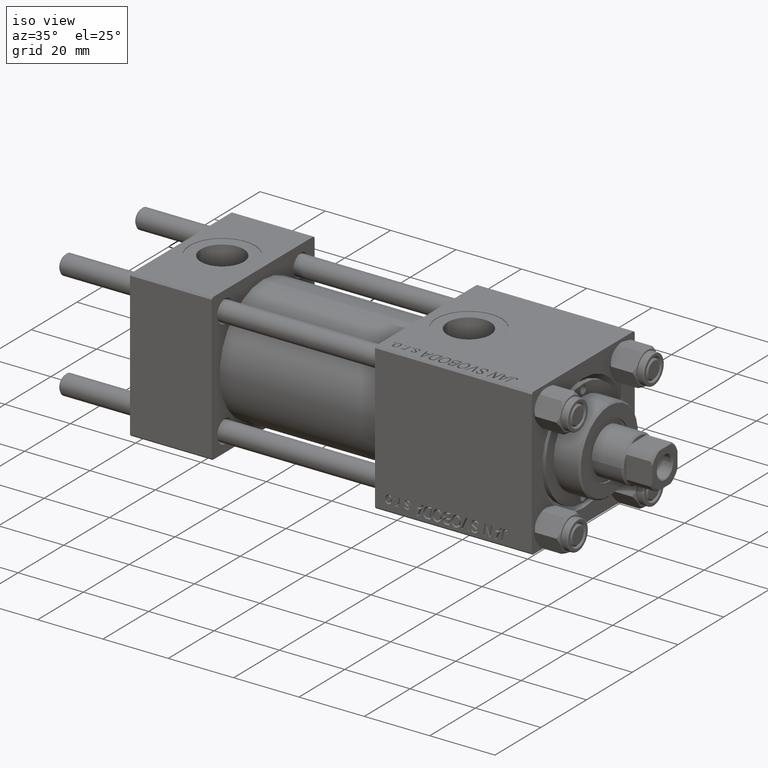
[diagram: clean part render]
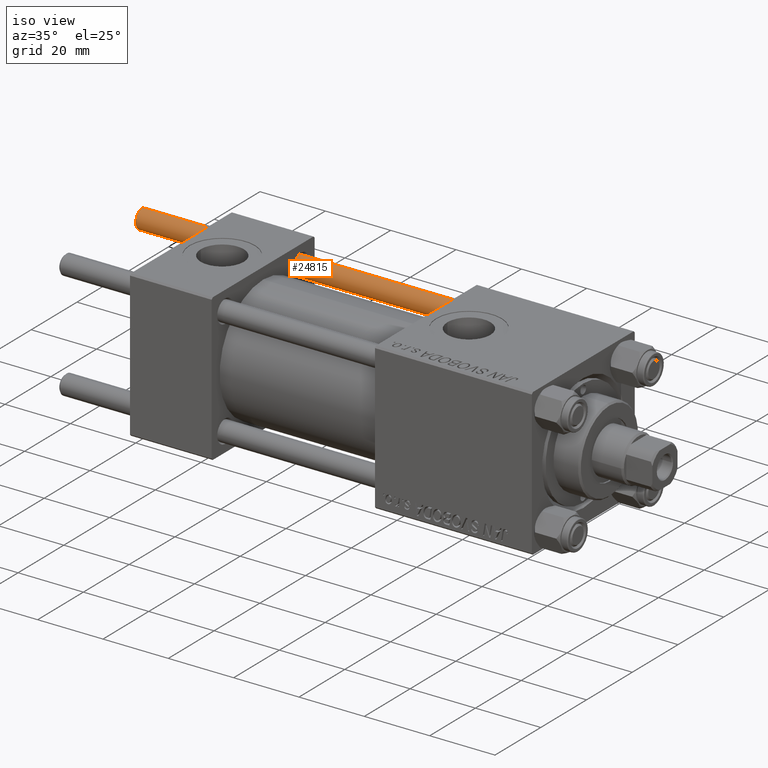
[diagram: same view with one face highlighted and labeled with its STEP entity id]
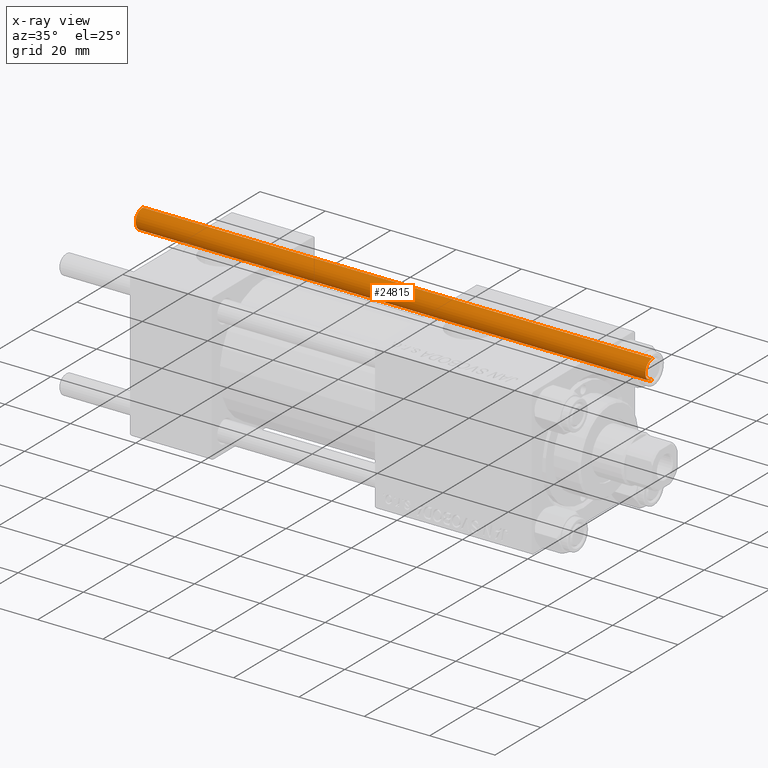
[diagram: x-ray of the same camera — body ghosted, the highlighted face saturated]
A machine part, iso view. The second image highlights one B-rep face of the part: STEP entity #24815.
The next image is the same camera in x-ray: the body ghosted, the highlighted face saturated — about 0% of this face is hidden behind the body in this view.
In plain terms, the highlighted cylindrical surface (edge-blend (fillet) strip) has radius 3 mm, axis along (-1, -0, -0).
Its self-contained STEP definition (entity closure, byte-faithful):
#1896 = VERTEX_POINT ( 'NONE', #11732 ) ;
#3324 = EDGE_LOOP ( 'NONE', ( #34617, #22170, #18731, #33400 ) ) ;
#3808 = VERTEX_POINT ( 'NONE', #28112 ) ;
#4708 = EDGE_CURVE ( 'NONE', #1896, #3808, #44810, .T. ) ;
#7423 = CIRCLE ( 'NONE', #13902, 3.000000000000000444 ) ;
#7602 = VECTOR ( 'NONE', #48606, 1000.000000000000000 ) ;
#9958 = DIRECTION ( 'NONE',  ( -0.000000000000000000, -0.000000000000000000, -1.000000000000000000 ) ) ;
#11732 = CARTESIAN_POINT ( 'NONE',  ( 3.000000000000000444, 3.673940397442060361E-16, 156.5000000000000284 ) ) ;
#11963 = CIRCLE ( 'NONE', #46720, 3.000000000000000444 ) ;
#13238 = VERTEX_POINT ( 'NONE', #22772 ) ;
#13902 = AXIS2_PLACEMENT_3D ( 'NONE', #30870, #23258, #46295 ) ;
#15568 = CARTESIAN_POINT ( 'NONE',  ( -3.000000000000000444, 0.000000000000000000, 157.0000000000000000 ) ) ;
#17101 = VECTOR ( 'NONE', #39340, 1000.000000000000000 ) ;
#17502 = DIRECTION ( 'NONE',  ( 0.000000000000000000, 0.000000000000000000, -1.000000000000000000 ) ) ;
#18731 = ORIENTED_EDGE ( 'NONE', *, *, #44992, .T. ) ;
#21044 = DIRECTION ( 'NONE',  ( 1.000000000000000000, 0.000000000000000000, 0.000000000000000000 ) ) ;
#22170 = ORIENTED_EDGE ( 'NONE', *, *, #38453, .T. ) ;
#22772 = CARTESIAN_POINT ( 'NONE',  ( -3.000000000000000444, 0.000000000000000000, 0.4999999999999726885 ) ) ;
#23258 = DIRECTION ( 'NONE',  ( -0.000000000000000000, -0.000000000000000000, 1.000000000000000000 ) ) ;
#24815 = ADVANCED_FACE ( 'NONE', ( #49184 ), #36780, .T. ) ;
#25897 = DIRECTION ( 'NONE',  ( -1.000000000000000000, 0.000000000000000000, 0.000000000000000000 ) ) ;
#28112 = CARTESIAN_POINT ( 'NONE',  ( 3.000000000000000444, 3.673940397442060361E-16, 0.4999999999999726885 ) ) ;
#30870 = CARTESIAN_POINT ( 'NONE',  ( 0.000000000000000000, 0.000000000000000000, 0.4999999999999726885 ) ) ;
#33181 = CARTESIAN_POINT ( 'NONE',  ( 3.000000000000000444, 3.673940397442060361E-16, 157.0000000000000000 ) ) ;
#33248 = CARTESIAN_POINT ( 'NONE',  ( 0.000000000000000000, 0.000000000000000000, 157.0000000000000000 ) ) ;
#33400 = ORIENTED_EDGE ( 'NONE', *, *, #47946, .T. ) ;
#33818 = AXIS2_PLACEMENT_3D ( 'NONE', #33248, #9958, #25897 ) ;
#34617 = ORIENTED_EDGE ( 'NONE', *, *, #4708, .F. ) ;
#35564 = LINE ( 'NONE', #15568, #17101 ) ;
#36715 = CARTESIAN_POINT ( 'NONE',  ( 0.000000000000000000, 0.000000000000000000, 156.5000000000000284 ) ) ;
#36780 = CYLINDRICAL_SURFACE ( 'NONE', #33818, 3.000000000000000444 ) ;
#38453 = EDGE_CURVE ( 'NONE', #1896, #49145, #11963, .T. ) ;
#39340 = DIRECTION ( 'NONE',  ( -0.000000000000000000, -0.000000000000000000, -1.000000000000000000 ) ) ;
#39575 = CARTESIAN_POINT ( 'NONE',  ( -3.000000000000000444, 0.000000000000000000, 156.5000000000000284 ) ) ;
#44810 = LINE ( 'NONE', #33181, #7602 ) ;
#44992 = EDGE_CURVE ( 'NONE', #49145, #13238, #35564, .T. ) ;
#46295 = DIRECTION ( 'NONE',  ( 1.000000000000000000, 0.000000000000000000, 0.000000000000000000 ) ) ;
#46720 = AXIS2_PLACEMENT_3D ( 'NONE', #36715, #17502, #21044 ) ;
#47946 = EDGE_CURVE ( 'NONE', #13238, #3808, #7423, .T. ) ;
#48606 = DIRECTION ( 'NONE',  ( -0.000000000000000000, -0.000000000000000000, -1.000000000000000000 ) ) ;
#49145 = VERTEX_POINT ( 'NONE', #39575 ) ;
#49184 = FACE_OUTER_BOUND ( 'NONE', #3324, .T. ) ;